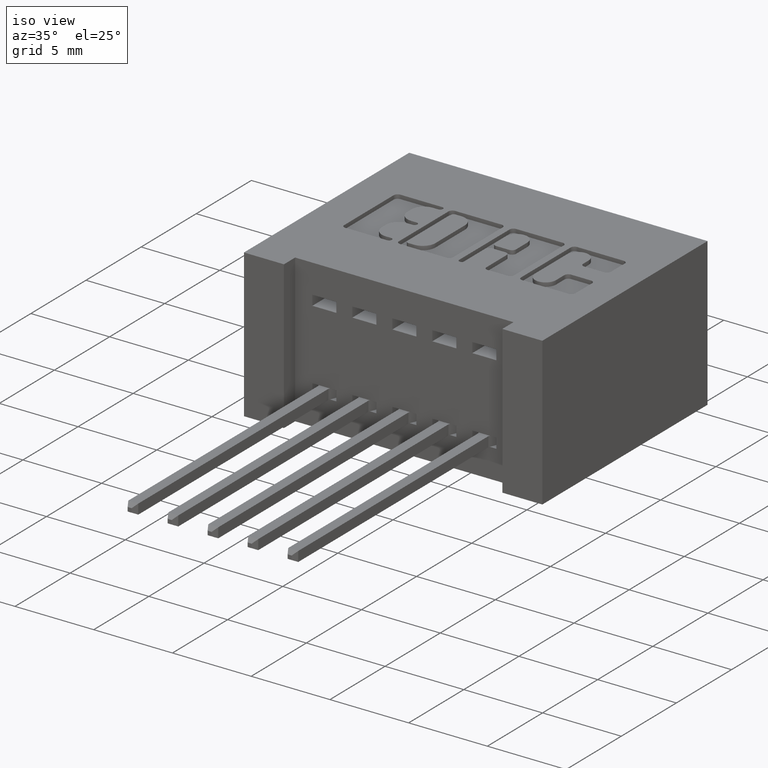
[diagram: clean part render]
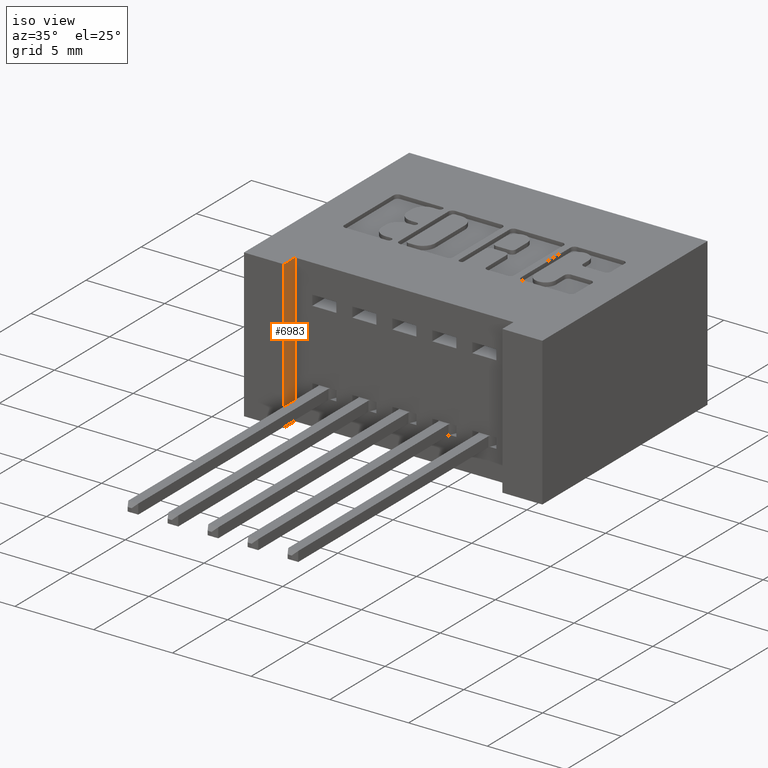
[diagram: same view with one face highlighted and labeled with its STEP entity id]
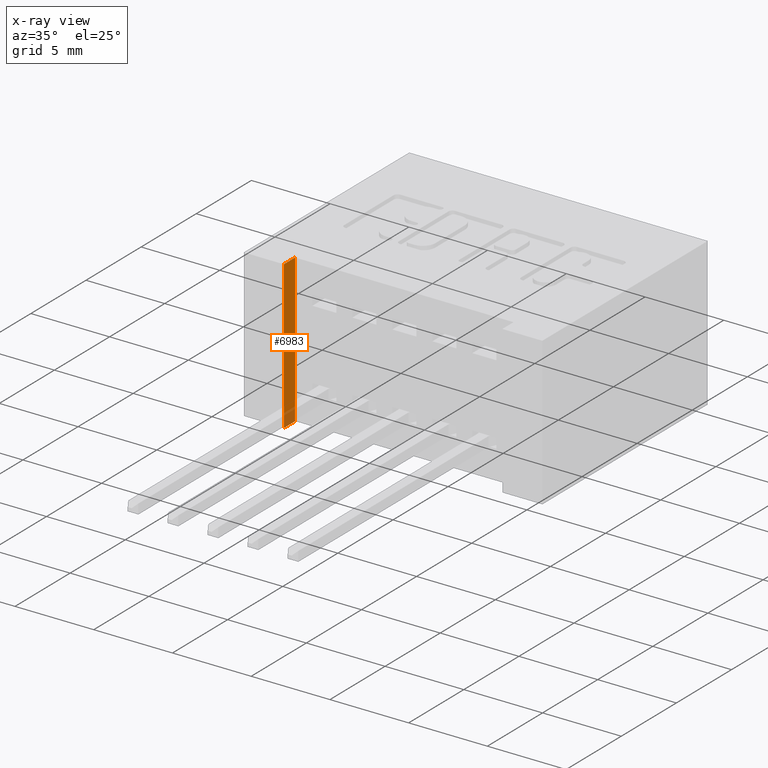
[diagram: x-ray of the same camera — body ghosted, the highlighted face saturated]
A machine part, iso view. The second image highlights one B-rep face of the part: STEP entity #6983.
The next image is the same camera in x-ray: the body ghosted, the highlighted face saturated — about 8% of this face is hidden behind the body in this view.
In plain terms, the highlighted planar face has unit normal (-1, 0, 0).
Its self-contained STEP definition (entity closure, byte-faithful):
#11 = LINE ( 'NONE', #369, #6977 ) ;
#198 = DIRECTION ( 'NONE',  ( -0.0000000000000000000, -1.000000000000000000, -0.0000000000000000000 ) ) ;
#369 = CARTESIAN_POINT ( 'NONE',  ( 0.3770000000000000600, 0.04000000000000000100, 0.0000000000000000000 ) ) ;
#574 = DIRECTION ( 'NONE',  ( -1.000000000000000000, 0.0000000000000000000, 0.0000000000000000000 ) ) ;
#594 = EDGE_CURVE ( 'NONE', #3425, #4923, #2650, .T. ) ;
#901 = CARTESIAN_POINT ( 'NONE',  ( 0.3770000000000000600, 0.04000000000000000100, -0.3700000000000000000 ) ) ;
#1274 = EDGE_CURVE ( 'NONE', #7115, #3425, #11, .T. ) ;
#1311 = FACE_OUTER_BOUND ( 'NONE', #3027, .T. ) ;
#1851 = CARTESIAN_POINT ( 'NONE',  ( 0.3770000000000000600, 0.04000000000000000100, 0.0000000000000000000 ) ) ;
#2544 = ORIENTED_EDGE ( 'NONE', *, *, #1274, .T. ) ;
#2558 = CARTESIAN_POINT ( 'NONE',  ( 0.3770000000000000600, 0.0000000000000000000, -0.3700000000000000000 ) ) ;
#2650 = LINE ( 'NONE', #6210, #5552 ) ;
#2886 = PLANE ( 'NONE',  #7210 ) ;
#3027 = EDGE_LOOP ( 'NONE', ( #6603, #3732, #5439, #2544 ) ) ;
#3077 = VECTOR ( 'NONE', #7154, 39.37007874015748100 ) ;
#3242 = LINE ( 'NONE', #901, #6483 ) ;
#3425 = VERTEX_POINT ( 'NONE', #7051 ) ;
#3732 = ORIENTED_EDGE ( 'NONE', *, *, #4308, .F. ) ;
#4074 = CARTESIAN_POINT ( 'NONE',  ( 0.3770000000000000600, 0.04000000000000000100, -0.3700000000000000000 ) ) ;
#4308 = EDGE_CURVE ( 'NONE', #5955, #4923, #6509, .T. ) ;
#4651 = DIRECTION ( 'NONE',  ( 0.0000000000000000000, 0.0000000000000000000, 1.000000000000000000 ) ) ;
#4923 = VERTEX_POINT ( 'NONE', #2558 ) ;
#5439 = ORIENTED_EDGE ( 'NONE', *, *, #6092, .F. ) ;
#5552 = VECTOR ( 'NONE', #6833, 39.37007874015748100 ) ;
#5667 = CARTESIAN_POINT ( 'NONE',  ( 0.3770000000000000600, 0.04000000000000000100, -0.3700000000000000000 ) ) ;
#5955 = VERTEX_POINT ( 'NONE', #5974 ) ;
#5974 = CARTESIAN_POINT ( 'NONE',  ( 0.3770000000000000600, 0.04000000000000000100, -0.3700000000000000000 ) ) ;
#6092 = EDGE_CURVE ( 'NONE', #7115, #5955, #3242, .T. ) ;
#6210 = CARTESIAN_POINT ( 'NONE',  ( 0.3770000000000000600, 0.0000000000000000000, -0.3700000000000000000 ) ) ;
#6483 = VECTOR ( 'NONE', #6689, 39.37007874015748100 ) ;
#6509 = LINE ( 'NONE', #5667, #3077 ) ;
#6603 = ORIENTED_EDGE ( 'NONE', *, *, #594, .T. ) ;
#6689 = DIRECTION ( 'NONE',  ( -0.0000000000000000000, -0.0000000000000000000, -1.000000000000000000 ) ) ;
#6833 = DIRECTION ( 'NONE',  ( -0.0000000000000000000, -0.0000000000000000000, -1.000000000000000000 ) ) ;
#6977 = VECTOR ( 'NONE', #198, 39.37007874015748100 ) ;
#6983 = ADVANCED_FACE ( 'NONE', ( #1311 ), #2886, .F. ) ;
#7051 = CARTESIAN_POINT ( 'NONE',  ( 0.3770000000000000600, 0.0000000000000000000, 0.0000000000000000000 ) ) ;
#7115 = VERTEX_POINT ( 'NONE', #1851 ) ;
#7154 = DIRECTION ( 'NONE',  ( -0.0000000000000000000, -1.000000000000000000, -0.0000000000000000000 ) ) ;
#7210 = AXIS2_PLACEMENT_3D ( 'NONE', #4074, #574, #4651 ) ;